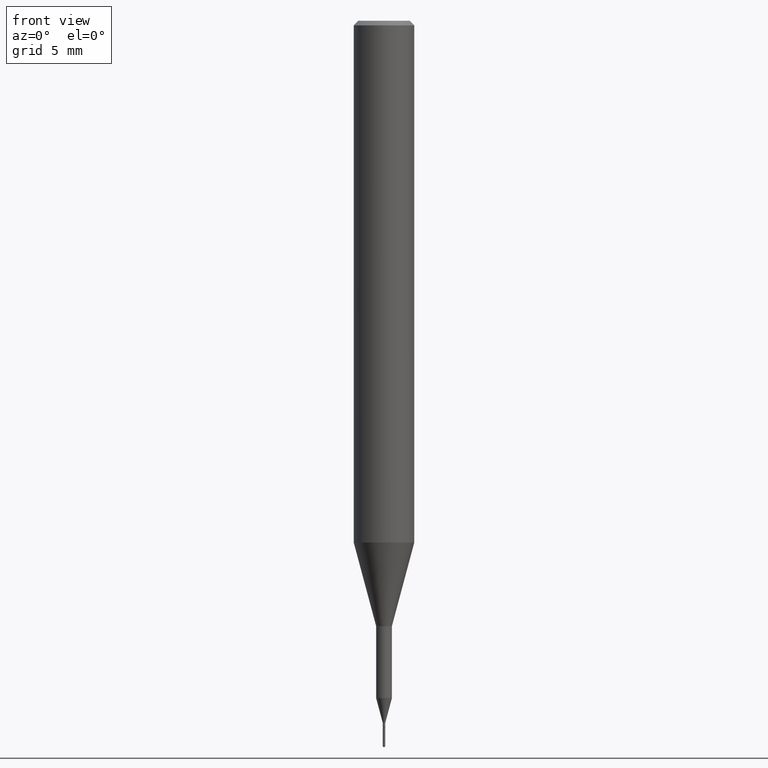
[diagram: clean part render]
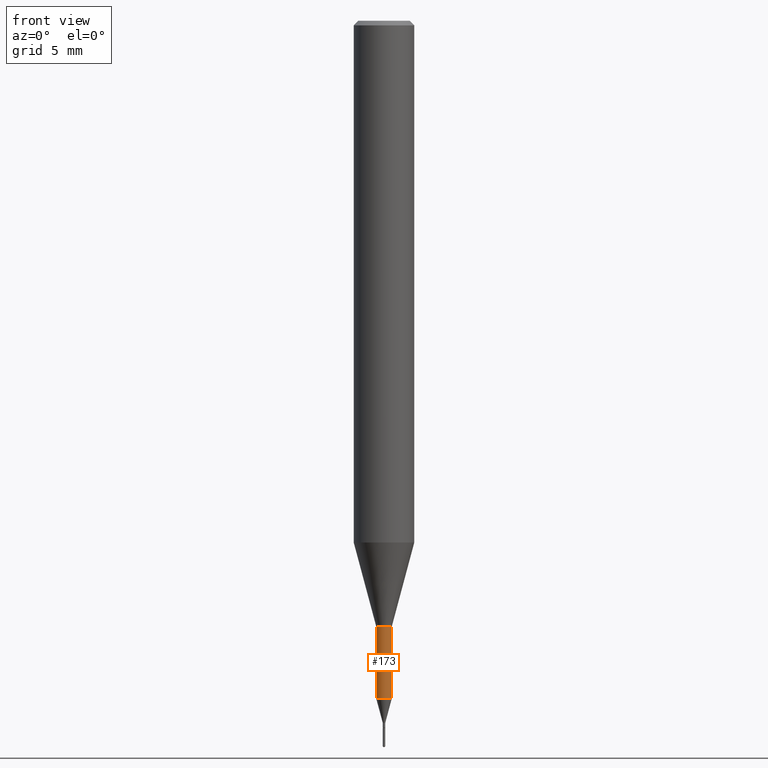
[diagram: same view with one face highlighted and labeled with its STEP entity id]
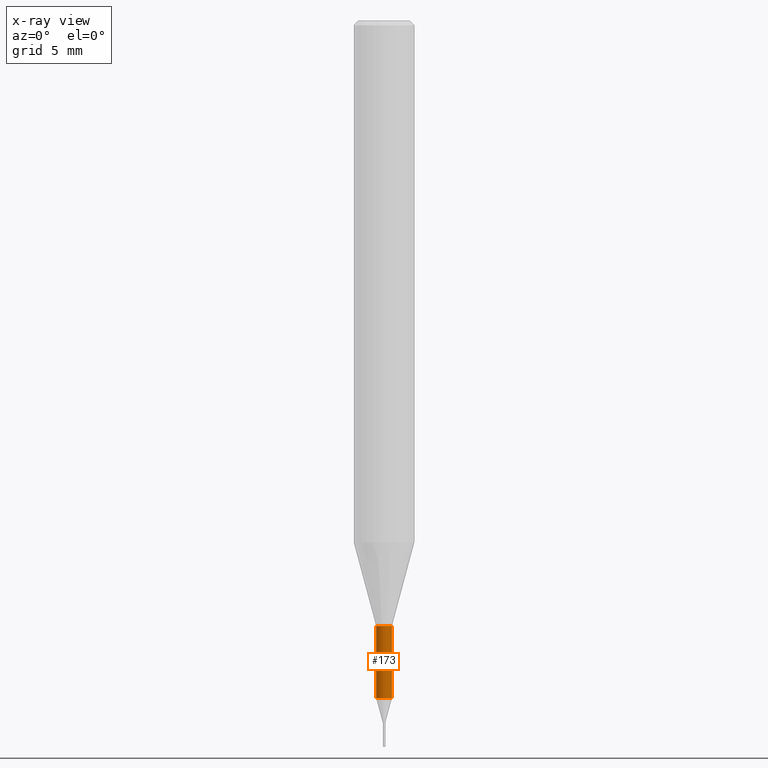
[diagram: x-ray of the same camera — body ghosted, the highlighted face saturated]
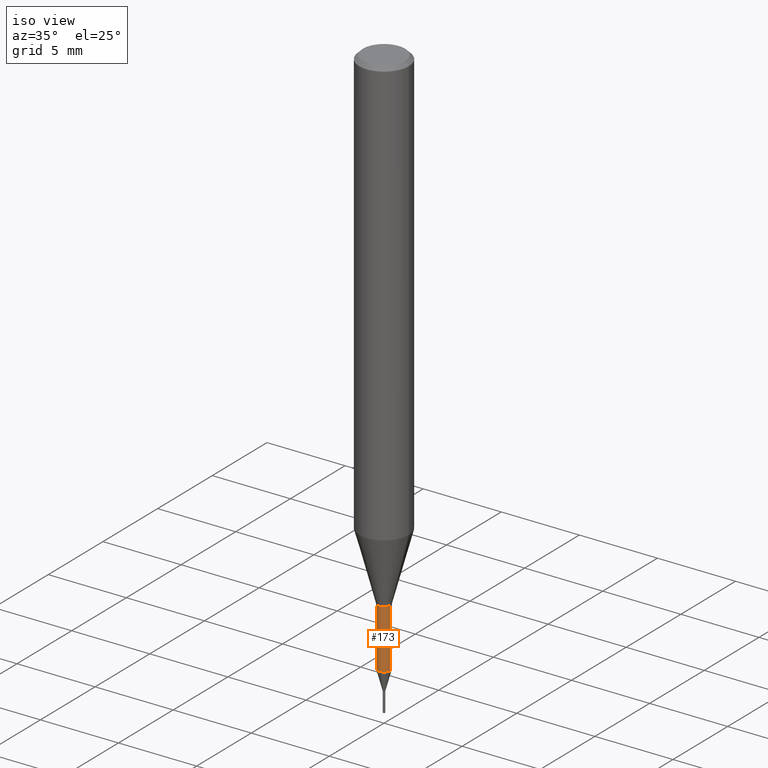
[diagram: same view with one face highlighted and labeled with its STEP entity id]
A machine part, front view. The second image highlights one B-rep face of the part: STEP entity #173.
The next image is the same camera in x-ray: the body ghosted, the highlighted face saturated — about 0% of this face is hidden behind the body in this view.
A second angle (iso view) of the same face is appended — the face is thin or edge-on in the first view.
In plain terms, the highlighted cylindrical surface (edge-blend (fillet) strip) has radius 0.4128 mm, axis along (-0, 0, 1).
Its self-contained STEP definition (entity closure, byte-faithful):
#1 = CIRCLE ( 'NONE', #228, 0.01625000000000000056 ) ;
#31 = VERTEX_POINT ( 'NONE', #81 ) ;
#61 = VECTOR ( 'NONE', #185, 39.37007874015748143 ) ;
#68 = EDGE_LOOP ( 'NONE', ( #195, #402, #313, #577 ) ) ;
#81 = CARTESIAN_POINT ( 'NONE',  ( -0.01625000000000000056, -4.768016942695728892E-15, -1.398684301395928253 ) ) ;
#88 = DIRECTION ( 'NONE',  ( 1.000000000000000000, -6.982962677686265922E-15, 4.876176775795935232E-29 ) ) ;
#114 = EDGE_CURVE ( 'NONE', #546, #324, #556, .T. ) ;
#115 = CARTESIAN_POINT ( 'NONE',  ( 3.056836007731421306E-29, -4.364351673553932471E-15, -1.250000000000000000 ) ) ;
#167 = CYLINDRICAL_SURFACE ( 'NONE', #280, 0.01625000000000000056 ) ;
#173 = ADVANCED_FACE ( 'NONE', ( #216 ), #167, .T. ) ;
#185 = DIRECTION ( 'NONE',  ( -2.445468806185136877E-29, 3.491481338843145188E-15, 1.000000000000000000 ) ) ;
#186 = DIRECTION ( 'NONE',  ( -2.445468806185136877E-29, 3.491481338843145188E-15, 1.000000000000000000 ) ) ;
#195 = ORIENTED_EDGE ( 'NONE', *, *, #581, .F. ) ;
#196 = CARTESIAN_POINT ( 'NONE',  ( 0.01625000000000000056, -4.996953280769146753E-15, -1.398684301395928253 ) ) ;
#216 = FACE_OUTER_BOUND ( 'NONE', #68, .T. ) ;
#224 = EDGE_CURVE ( 'NONE', #31, #552, #1, .T. ) ;
#228 = AXIS2_PLACEMENT_3D ( 'NONE', #309, #482, #256 ) ;
#256 = DIRECTION ( 'NONE',  ( 1.000000000000000000, -6.982962677686258033E-15, 0.000000000000000000 ) ) ;
#268 = DIRECTION ( 'NONE',  ( 1.000000000000000000, -6.982962677686288799E-15, 0.000000000000000000 ) ) ;
#280 = AXIS2_PLACEMENT_3D ( 'NONE', #310, #483, #88 ) ;
#309 = CARTESIAN_POINT ( 'NONE',  ( 3.420438828764592188E-29, -4.883480137256745077E-15, -1.398684301395928253 ) ) ;
#310 = CARTESIAN_POINT ( 'NONE',  ( 0.000000000000000000, 0.000000000000000000, 0.000000000000000000 ) ) ;
#313 = ORIENTED_EDGE ( 'NONE', *, *, #467, .T. ) ;
#324 = VERTEX_POINT ( 'NONE', #572 ) ;
#334 = VECTOR ( 'NONE', #186, 39.37007874015748143 ) ;
#377 = CARTESIAN_POINT ( 'NONE',  ( 0.01625000000000000056, -1.134731435124018242E-16, 7.923787260668394963E-31 ) ) ;
#402 = ORIENTED_EDGE ( 'NONE', *, *, #224, .T. ) ;
#443 = AXIS2_PLACEMENT_3D ( 'NONE', #115, #571, #268 ) ;
#467 = EDGE_CURVE ( 'NONE', #552, #324, #497, .T. ) ;
#469 = CARTESIAN_POINT ( 'NONE',  ( -0.01624999999999999709, -4.508452710844322194E-15, -1.250000000000000000 ) ) ;
#482 = DIRECTION ( 'NONE',  ( -2.445468806185136597E-29, 3.491481338843145583E-15, 1.000000000000000000 ) ) ;
#483 = DIRECTION ( 'NONE',  ( -2.445468806185136597E-29, 3.491481338843145583E-15, 1.000000000000000000 ) ) ;
#496 = LINE ( 'NONE', #586, #61 ) ;
#497 = LINE ( 'NONE', #377, #334 ) ;
#546 = VERTEX_POINT ( 'NONE', #469 ) ;
#552 = VERTEX_POINT ( 'NONE', #196 ) ;
#556 = CIRCLE ( 'NONE', #443, 0.01624999999999999709 ) ;
#571 = DIRECTION ( 'NONE',  ( -2.445468806185136597E-29, 3.491481338843145583E-15, 1.000000000000000000 ) ) ;
#572 = CARTESIAN_POINT ( 'NONE',  ( 0.01624999999999999709, -4.477824817066334148E-15, -1.250000000000000000 ) ) ;
#577 = ORIENTED_EDGE ( 'NONE', *, *, #114, .F. ) ;
#581 = EDGE_CURVE ( 'NONE', #31, #546, #496, .T. ) ;
#586 = CARTESIAN_POINT ( 'NONE',  ( -0.01625000000000000056, 1.154631945610162841E-16, -7.993269521664222036E-31 ) ) ;